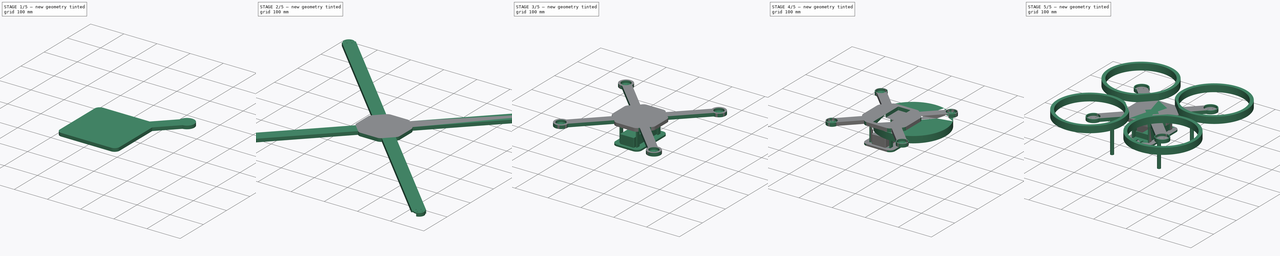
[diagram: build sequence overview — one tinted view per stage of 5, left to right]
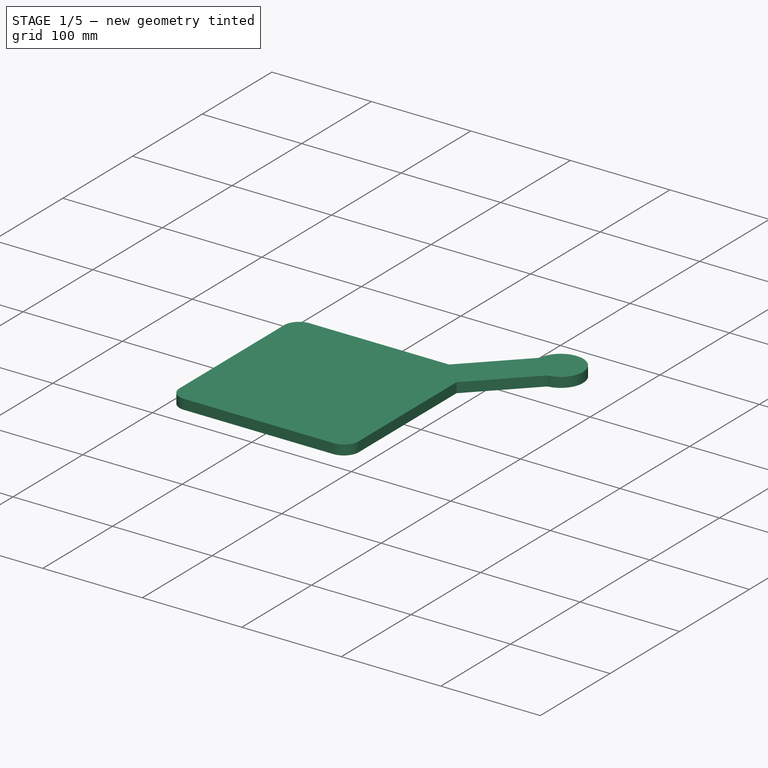
[diagram: stage 1 of 5 — iso view after this stage's code; geometry added in this stage tinted green]
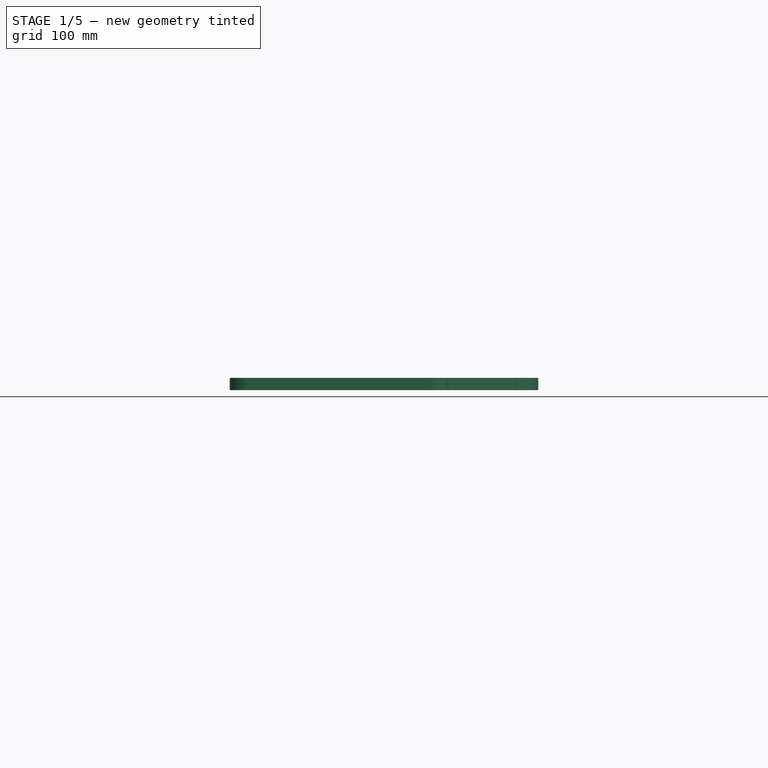
[diagram: stage 1 of 5 — front view after this stage's code; geometry added in this stage tinted green]
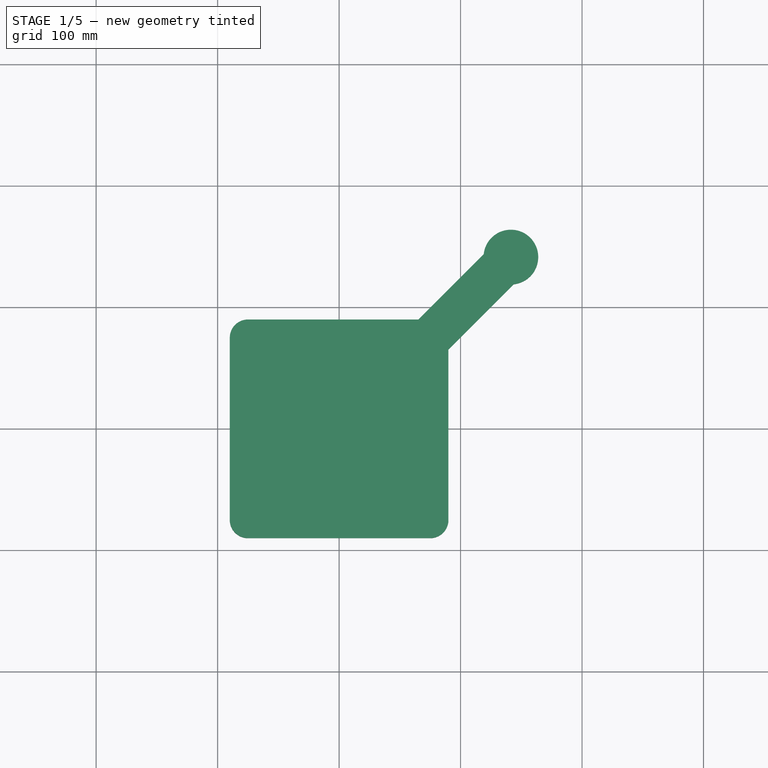
[diagram: stage 1 of 5 — top view after this stage's code; geometry added in this stage tinted green]
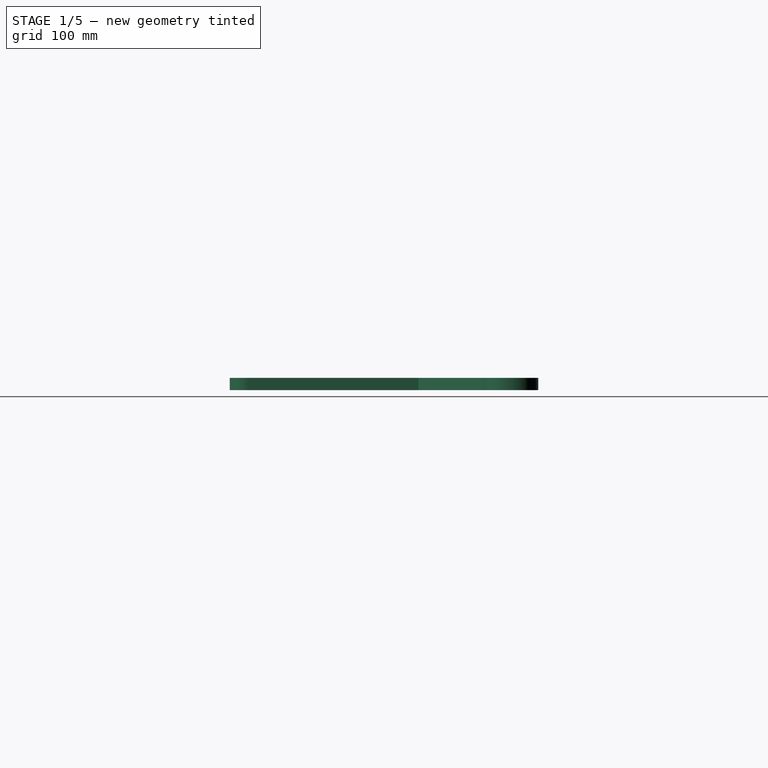
[diagram: stage 1 of 5 — right view after this stage's code; geometry added in this stage tinted green]
FCSTD DOCUMENT  (FreeCAD 0.19R)
Label: final_quadcopter
License: All rights reserved
LicenseURL: http://en.wikipedia.org/wiki/All_rights_reserved
objects: Sketcher::SketchObject×16, PartDesign::Pad×8, PartDesign::Pocket×6, Spreadsheet::Sheet×1, PartDesign::Hole×1, PartDesign::PolarPattern×1, PartDesign::Body×1
note: 48 computed .brp shape members not serialized (recipe doc carries the construction recipe); baked Part::Feature solids carry a one-line shape summary decoded from their .brp

FEATURE [Sketcher::SketchObject] Sketch  label="top_base"
  FullyConstrained = true
  expr: .Constraints.frame_width = Spreadsheet.B2
  expr: .Constraints.frame_length = Spreadsheet.A2
  sketch-geometry (10):
    g0: ArcOfCircle CenterX=-75 CenterY=75 CenterZ=0 NormalX=0 NormalY=0 NormalZ=1 AngleXU=0 Radius=15 StartAngle=1.5708 EndAngle=3.14159
    g1: LineSegment StartX=-75 StartY=90 StartZ=0 EndX=75 EndY=90 EndZ=0
    g2: ArcOfCircle CenterX=75 CenterY=75 CenterZ=0 NormalX=0 NormalY=0 NormalZ=1 AngleXU=0 Radius=15 StartAngle=2e-16 EndAngle=1.5708
    g3: LineSegment StartX=90 StartY=75 StartZ=0 EndX=90 EndY=-75 EndZ=0
    g4: ArcOfCircle CenterX=75 CenterY=-75 CenterZ=0 NormalX=0 NormalY=0 NormalZ=1 AngleXU=0 Radius=15 StartAngle=4.71239 EndAngle=6.28319
    g5: LineSegment StartX=75 StartY=-90 StartZ=0 EndX=-75 EndY=-90 EndZ=0
    g6: ArcOfCircle CenterX=-75 CenterY=-75 CenterZ=0 NormalX=0 NormalY=0 NormalZ=1 AngleXU=0 Radius=15 StartAngle=3.14159 EndAngle=4.71239
    g7: LineSegment StartX=-90 StartY=-75 StartZ=0 EndX=-90 EndY=75 EndZ=0
    g8: GeomPoint X=-90 Y=90 Z=0
    g9: GeomPoint X=90 Y=-90 Z=0
  constraints (22):
    c: Tangent(g0,g1) = 1.5708
    c: Tangent(g1,g2) = 1.5708
    c: Tangent(g2,g3) = 1.5708
    c: Tangent(g3,g4) = 1.5708
    c: Tangent(g4,g5) = 1.5708
    c: Tangent(g5,g6) = 1.5708
    c: Tangent(g6,g7) = 1.5708
    c: Tangent(g7,g0) = 1.5708
    c: Horizontal(g1)
    c: Horizontal(g5)
    c: Vertical(g3)
    c: Vertical(g7)
    c: Equal(g2,g4)
    c: PointOnObject(g8,g1)
    c: PointOnObject(g8,g7)
    c: PointOnObject(g9,g3)
    c: PointOnObject(g9,g5)
    c: Distance(g7) = 150  'frame_length'
    c: Distance(g1) = 150  'frame_width'
    c: Radius(g2) = 15
    c: Symmetric(g0,g6,g-1)
    c: Symmetric(g0,g2,g-2)
FEATURE [Sketcher::SketchObject] Sketch001  label="arm"
  FullyConstrained = true
  MapMode = 5
  Placement = pos=(0,0,5) rot=(0,0,1;0rad)
  expr: .Constraints.arm_width = Spreadsheet.D2
  expr: .Constraints.arm_length = Spreadsheet.C2
  sketch-geometry (4):
    g0: LineSegment StartX=12.3744 StartY=-12.3744 StartZ=0 EndX=153.796 EndY=129.047 EndZ=0
    g1: LineSegment StartX=153.796 StartY=129.047 StartZ=0 EndX=129.047 EndY=153.796 EndZ=0
    g2: LineSegment StartX=129.047 StartY=153.796 StartZ=0 EndX=-12.3744 EndY=12.3744 EndZ=0
    g3: LineSegment StartX=-12.3744 StartY=12.3744 StartZ=0 EndX=12.3744 EndY=-12.3744 EndZ=0
  constraints (11):
    c: Coincident(g0,g1)
    c: Coincident(g1,g2)
    c: Coincident(g2,g3)
    c: Coincident(g3,g0)
    c: Equal(g1,g3)
    c: Equal(g2,g0)
    c: Perpendicular(g1,g0)
    c: Distance(g0) = 200  'arm_length'
    c: Distance(g1) = 35  'arm_width'
    c: Angle(g-1,g0) = 0.785398
    c: Symmetric(g2,g0,g-1)
FEATURE [Sketcher::SketchObject] Sketch002  label="outer_motor_base"
  ExternalGeometry = -> [Sketch001]
  FullyConstrained = true
  MapMode = 5
  Placement = pos=(0,0,5) rot=(0,0,1;0rad)
  expr: .Constraints.motor_outer_diameter = Spreadsheet.E2
  sketch-geometry (1):
    g0: Circle CenterX=141.421 CenterY=141.421 CenterZ=0 NormalX=0 NormalY=0 NormalZ=1 AngleXU=0 Radius=22.5
  constraints (2):
    c: Diameter(g0) = 45  'motor_outer_diameter'
    c: Symmetric(g-3,g-4,g0)
FEATURE [Sketcher::SketchObject] Sketch004
  FullyConstrained = true
  MapMode = 5
  Placement = pos=(0,0,5) rot=(0,0,1;0rad)
FEATURE [PartDesign::Pad] Pad
  Direction = (0,0,1)
  Length = 10
  Length2 = 10
  Profile = -> Sketch
  Type = 0
FEATURE [PartDesign::Pad] Pad001
  BaseFeature = -> Pad
  Direction = (0,0,1)
  Length = 10
  Length2 = 10
  Midplane = true
  Profile = -> Sketch001
  Type = 0
FEATURE [PartDesign::Pad] Pad002
  BaseFeature = -> Pad001
  Direction = (0,0,1)
  Length = 10
  Length2 = 10
  Midplane = true
  Profile = -> Sketch002
  Type = 0
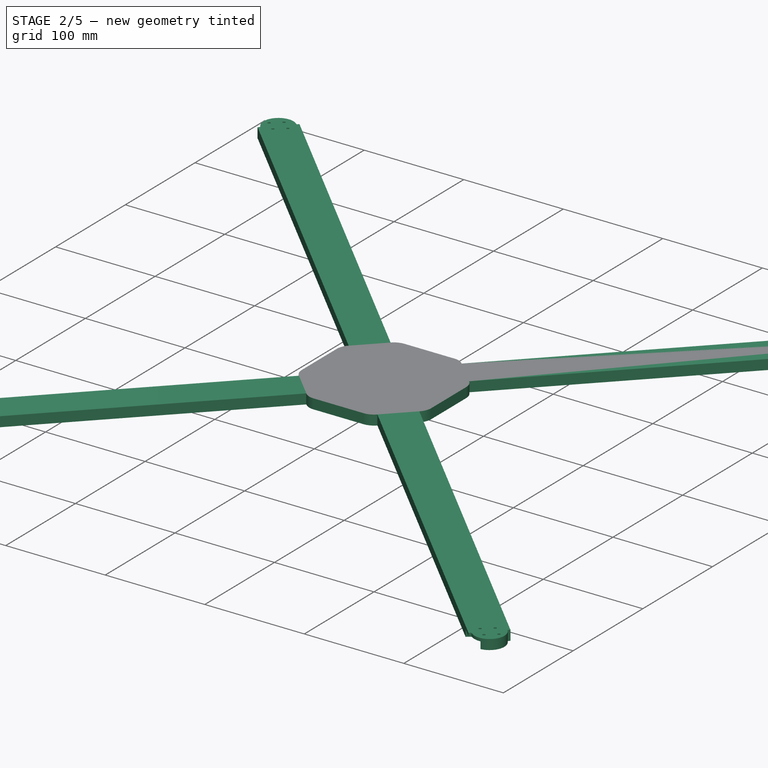
[diagram: stage 2 of 5 — iso view after this stage's code; geometry added in this stage tinted green]
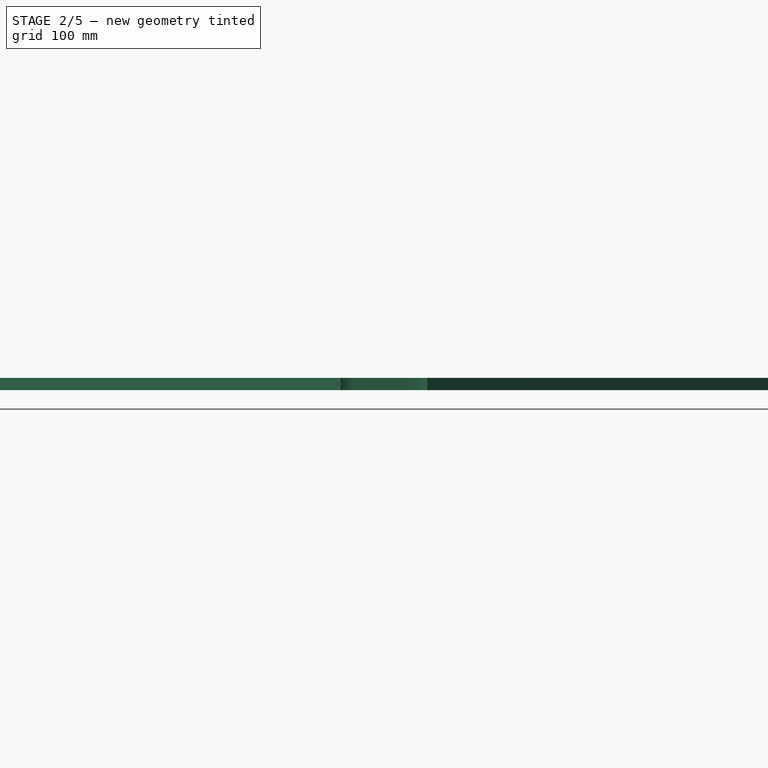
[diagram: stage 2 of 5 — front view after this stage's code; geometry added in this stage tinted green]
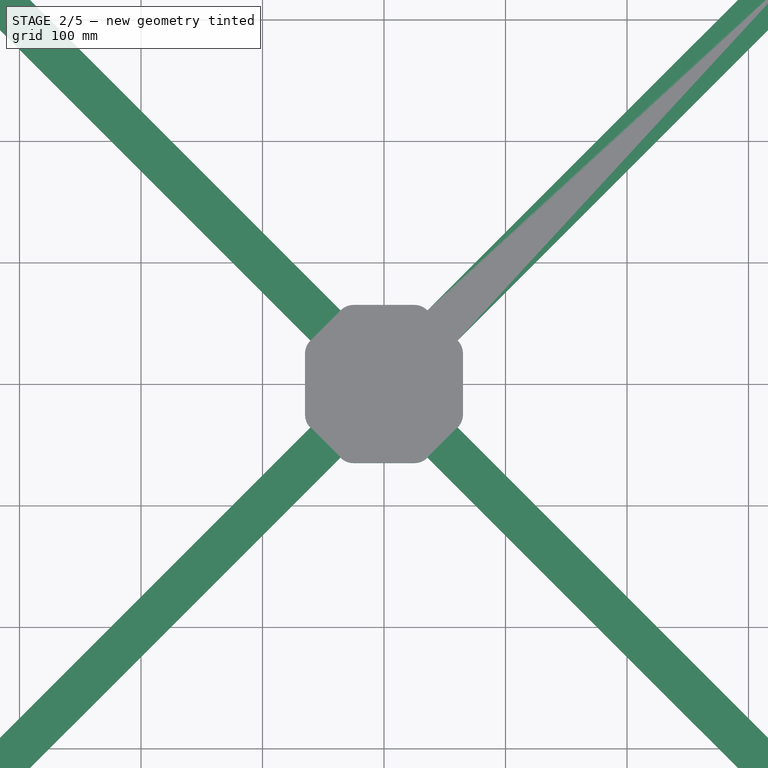
[diagram: stage 2 of 5 — top view after this stage's code; geometry added in this stage tinted green]
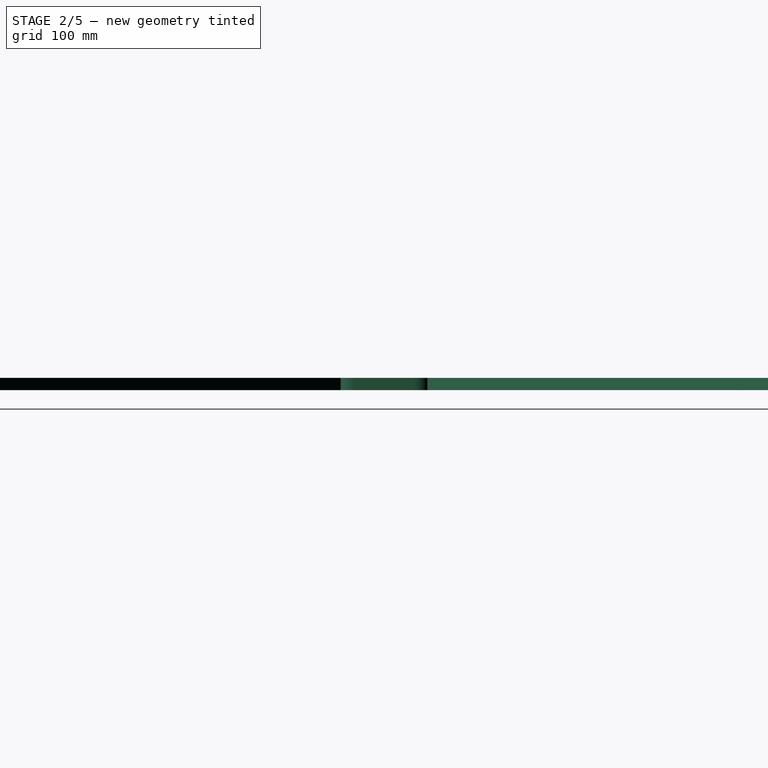
[diagram: stage 2 of 5 — right view after this stage's code; geometry added in this stage tinted green]
FEATURE [Spreadsheet::Sheet] Spreadsheet
  cells = A1=Frame Length; B1=Frame Width; C1=Arm Length; D1=Arm Width; E1=Motor Outer Diameter; F1=Motor Actual Diameter; G1=Motor Srew Diameter; H1=Screw Distance 1; I1=Screw Distance 2; J1=Drone Frame Hieght; K1=Base Thickness; L1=Battery Length; M1=Bettery Width; N1=Battery Height; O1=Battery Edge Radius; P1=Battery Thickness; Q1=Battery Clearance Height; R1=Guard Height; S1=Rotor Diameter; T1=Guard Radius; U1=Landing Base Diameter; V1=Landing Base Height; W1=Switch Terminal Thickness Radius; X1= Switch Terminal Distance; Y1=Switch Terminal Length; A2=150; B2=150; C2=200; D2=35; E2=45; F2=28; G2=2; H2=16; I2=19; J2=100; K2=5; L2=105; M2=35; N2=30; O2=2; P2=5; Q2=15; R2=20; S2=100; T2=100; U2=10; V2=100; W2=2; X2=15; Y2=10
FEATURE [Sketcher::SketchObject] Sketch007  label="inner_motor_base"
  ExternalGeometry = -> [Pad002]
  FullyConstrained = true
  MapMode = 5
  Placement = pos=(0,0,10) rot=(0,0,1;0rad)
  Support = -> [Pad002]
  expr: .Constraints.motor_diameter = Spreadsheet.F2
  sketch-geometry (1):
    g0: Circle CenterX=141.421 CenterY=141.421 CenterZ=0 NormalX=0 NormalY=0 NormalZ=1 AngleXU=0 Radius=14
  constraints (2):
    c: Coincident(g0,g-5)
    c: Diameter(g0) = 28  'motor_diameter'
FEATURE [PartDesign::Pocket] Pocket
  BaseFeature = -> Pad002
  Length = 7
  Length2 = 5
  Profile = -> Sketch007
  Type = 0
FEATURE [Sketcher::SketchObject] Sketch008  label="motor_screws"
  ExternalGeometry = -> [Pocket,Sketch001,Sketch007]
  FullyConstrained = false
  MapMode = 5
  Placement = pos=(0,0,3) rot=(0,0,1;0rad)
  Support = -> [Pocket]
  expr: .Constraints.screw_distance_2 = Spreadsheet.I2
  expr: .Constraints.screw_distance_1 = Spreadsheet.H2
  expr: .Constraints.screw_diameter = Spreadsheet.G2
  sketch-geometry (4):
    g0: Circle CenterX=345.553 CenterY=-353.553 CenterZ=0 NormalX=0 NormalY=0 NormalZ=1 AngleXU=0 Radius=1
    g1: Circle CenterX=353.553 CenterY=-344.053 CenterZ=0 NormalX=0 NormalY=0 NormalZ=1 AngleXU=0 Radius=1
    g2: Circle CenterX=361.553 CenterY=-353.553 CenterZ=0 NormalX=0 NormalY=0 NormalZ=1 AngleXU=0 Radius=1
    g3: Circle CenterX=353.553 CenterY=-363.053 CenterZ=0 NormalX=0 NormalY=0 NormalZ=1 AngleXU=0 Radius=1
  constraints (10):
    c: Equal(g2,g3)
    c: Equal(g3,g1)
    c: Equal(g1,g0)
    c: Diameter(g1) = 2  'screw_diameter'
    c: Symmetric(g3,g1,g-3)
    c: Symmetric(g2,g0,g-3)
    c: Distance(g1,g3) = 19  'screw_distance_2'
    c: Distance(g2,g0) = 16  'screw_distance_1'
    c: Horizontal(g0,g-3)
    c: Vertical(g1,g-3)
FEATURE [PartDesign::Hole] Hole
  BaseFeature = -> Pocket
  Depth = 25
  DepthType = 0
  Diameter = 2.65
  DrillForDepth = false
  DrillPoint = 1
  DrillPointAngle = 118
  HoleCutCountersinkAngle = 90
  HoleCutCustomValues = false
  HoleCutDepth = 0
  HoleCutDiameter = 6.1
  HoleCutType = 0
  ModelActualThread = false
  Profile = -> Sketch008
  Tapered = false
  TaperedAngle = 90
  ThreadAngle = 60
  ThreadClass = 0
  ThreadCutOffInner = 0.0378886
  ThreadCutOffOuter = 0.0757772
  ThreadDirection = 0
  ThreadFit = 0
  ThreadPitch = 0.35
  ThreadSize = 9
  ThreadType = 2
  Threaded = true
FEATURE [PartDesign::PolarPattern] PolarPattern
  Angle = 360
  Axis = -> Sketch [N_Axis]
  BaseFeature = -> Hole
  Occurrences = 3
  Originals = -> [Pad,Pad001,Pad002,Pocket,Hole]
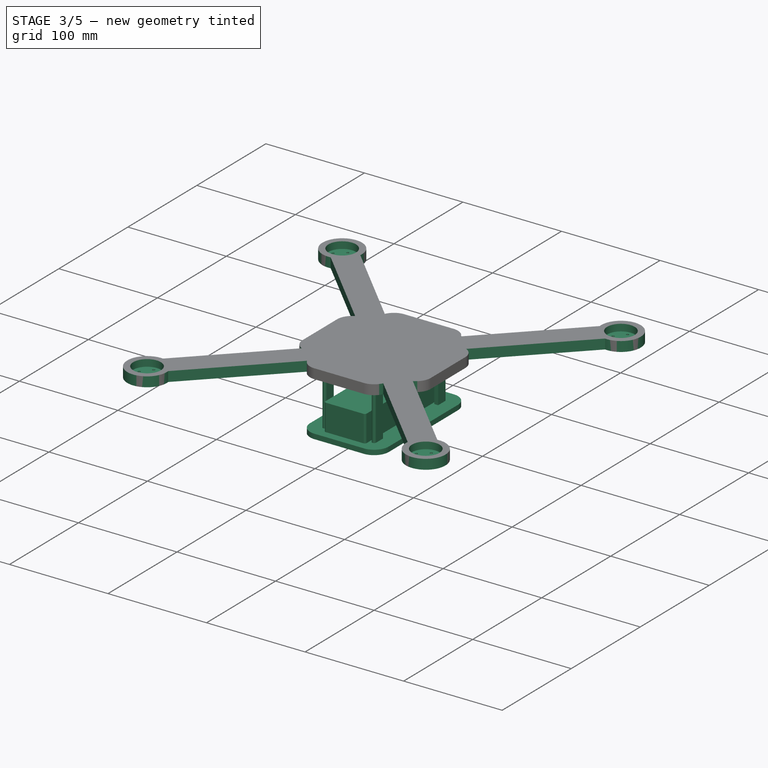
[diagram: stage 3 of 5 — iso view after this stage's code; geometry added in this stage tinted green]
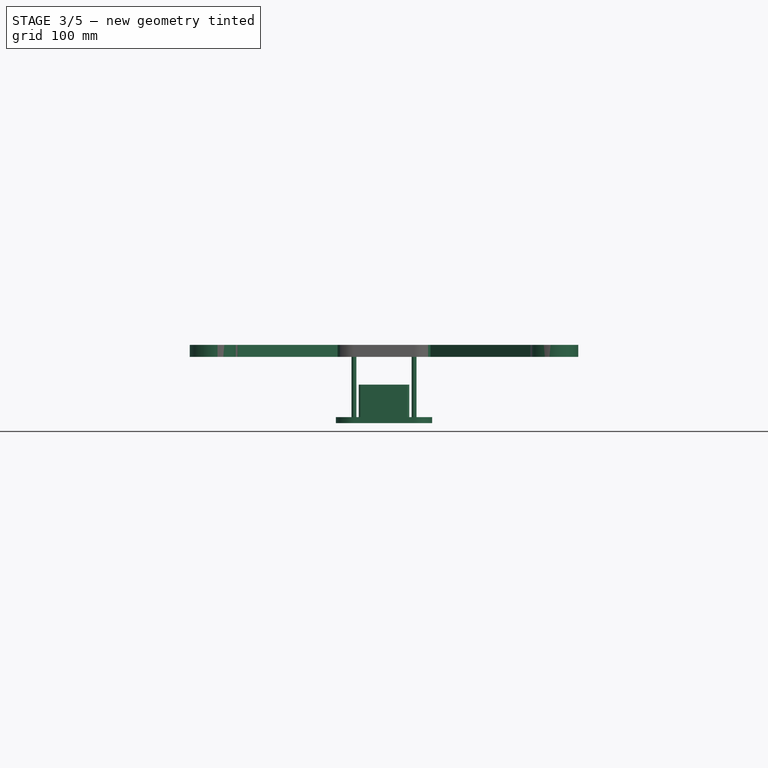
[diagram: stage 3 of 5 — front view after this stage's code; geometry added in this stage tinted green]
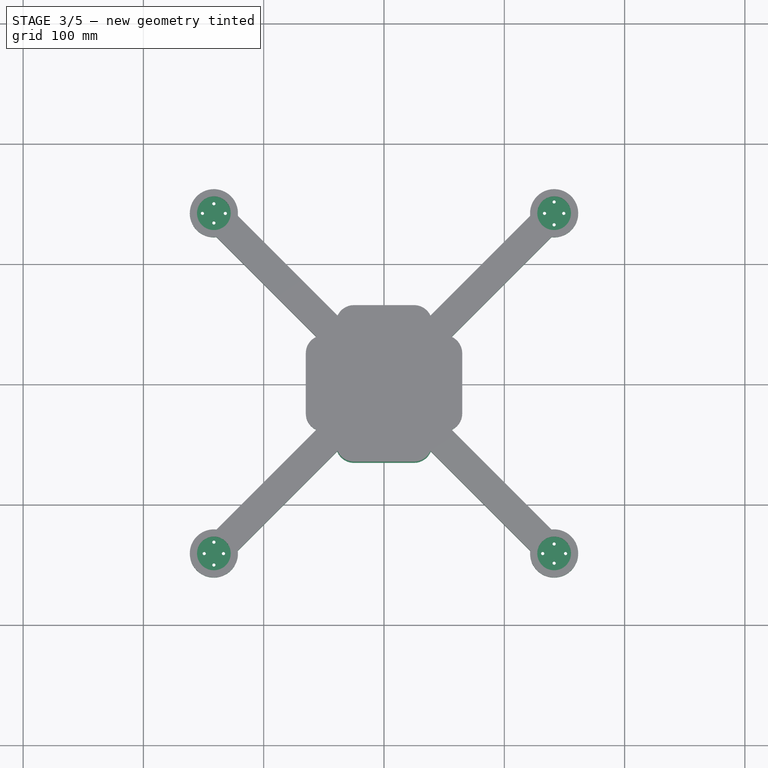
[diagram: stage 3 of 5 — top view after this stage's code; geometry added in this stage tinted green]
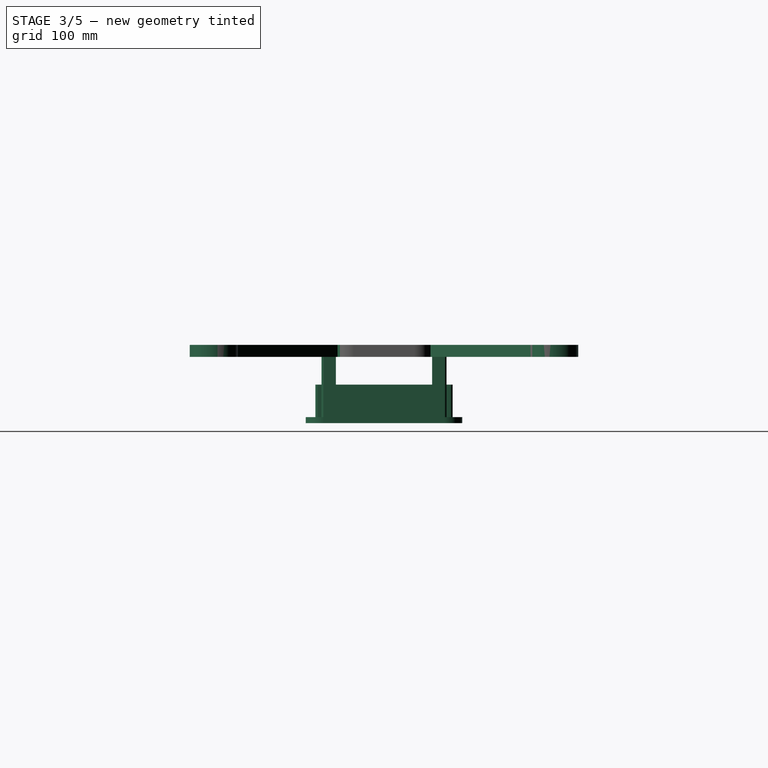
[diagram: stage 3 of 5 — right view after this stage's code; geometry added in this stage tinted green]
FEATURE [Sketcher::SketchObject] Sketch009  label="support_pads"
  ExternalGeometry = -> [PolarPattern]
  FullyConstrained = true
  MapMode = 5
  Placement = pos=(0,0,0) rot=(1,0,0;3.14159rad)
  Support = -> [PolarPattern]
  sketch-geometry (8):
    g0: ArcOfCircle CenterX=-25 CenterY=50 CenterZ=0 NormalX=0 NormalY=0 NormalZ=1 AngleXU=0 Radius=2 StartAngle=-9e-16 EndAngle=3.14159
    g1: ArcOfCircle CenterX=-25 CenterY=-50 CenterZ=0 NormalX=0 NormalY=0 NormalZ=1 AngleXU=0 Radius=2 StartAngle=3.14159 EndAngle=6.28319
    g2: LineSegment StartX=-27 StartY=50 StartZ=0 EndX=-27 EndY=-50 EndZ=0
    g3: LineSegment StartX=-23 StartY=-50 StartZ=0 EndX=-23 EndY=50 EndZ=0
    g4: ArcOfCircle CenterX=25 CenterY=50 CenterZ=0 NormalX=0 NormalY=0 NormalZ=1 AngleXU=0 Radius=2 StartAngle=-1.8e-15 EndAngle=3.14159
    g5: ArcOfCircle CenterX=25 CenterY=-50 CenterZ=0 NormalX=0 NormalY=0 NormalZ=1 AngleXU=0 Radius=2 StartAngle=3.14159 EndAngle=6.28319
    g6: LineSegment StartX=23 StartY=50 StartZ=0 EndX=23 EndY=-50 EndZ=0
    g7: LineSegment StartX=27 StartY=-50 StartZ=0 EndX=27 EndY=50 EndZ=0
  constraints (16):
    c: Tangent(g0,g2) = -1.5708
    c: Tangent(g2,g1) = -1.5708
    c: Tangent(g1,g3) = -1.5708
    c: Tangent(g3,g0) = -1.5708
    c: Equal(g0,g1)
    c: Coincident(g0,g-5)
    c: Coincident(g1,g-12)
    c: Radius(g0) = 2
    c: Tangent(g4,g6) = -1.5708
    c: Tangent(g6,g5) = -1.5708
    c: Tangent(g5,g7) = -1.5708
    c: Tangent(g7,g4) = -1.5708
    c: Equal(g4,g5)
    c: Coincident(g4,g-23)
    c: Coincident(g5,g-15)
    c: Equal(g4,g0)
FEATURE [PartDesign::Pad] Pad003
  BaseFeature = -> PolarPattern
  Direction = (0,0,-1)
  Length = 50
  Length2 = 10
  Profile = -> Sketch009
  Type = 0
  expr: Length = Spreadsheet.J2
FEATURE [Sketcher::SketchObject] Sketch010  label="support_pockets"
  ExternalGeometry = -> [Sketch009]
  FullyConstrained = true
  MapMode = 5
  Placement = pos=(0,0,-50) rot=(1,0,0;3.14159rad)
  Support = -> [Pad003]
  expr: .Constraints.support_tickness = Spreadsheet.A2 - Spreadsheet.A2 / 5
  sketch-geometry (8):
    g0: LineSegment StartX=-27 StartY=40 StartZ=0 EndX=-23 EndY=40 EndZ=0
    g1: LineSegment StartX=-23 StartY=40 StartZ=0 EndX=-23 EndY=-40 EndZ=0
    g2: LineSegment StartX=-23 StartY=-40 StartZ=0 EndX=-27 EndY=-40 EndZ=0
    g3: LineSegment StartX=-27 StartY=-40 StartZ=0 EndX=-27 EndY=40 EndZ=0
    g4: LineSegment StartX=23 StartY=40 StartZ=0 EndX=27 EndY=40 EndZ=0
    g5: LineSegment StartX=27 StartY=40 StartZ=0 EndX=27 EndY=-40 EndZ=0
    g6: LineSegment StartX=27 StartY=-40 StartZ=0 EndX=23 EndY=-40 EndZ=0
    g7: LineSegment StartX=23 StartY=-40 StartZ=0 EndX=23 EndY=40 EndZ=0
  constraints (22):
    c: Coincident(g0,g1)
    c: Coincident(g1,g2)
    c: Coincident(g2,g3)
    c: Coincident(g3,g0)
    c: Horizontal(g0)
    c: Horizontal(g2)
    c: Vertical(g1)
    c: PointOnObject(g0,g-4)
    c: PointOnObject(g1,g-5)
    c: Coincident(g4,g5)
    c: Coincident(g5,g6)
    c: Coincident(g6,g7)
    c: Coincident(g7,g4)
    c: Horizontal(g4)
    c: Horizontal(g6)
    c: Vertical(g5)
    c: PointOnObject(g4,g-8)
    c: PointOnObject(g5,g-9)
    c: Symmetric(g0,g2,g-1)
    c: Symmetric(g4,g6,g-1)
    c: Equal(g5,g1)
    c: Distance(g1) = 80  'support_tickness'
FEATURE [PartDesign::Pocket] Pocket001
  BaseFeature = -> Pad003
  Length = 50
  Length2 = 5
  Profile = -> Sketch010
  Type = 0
  expr: Length = Spreadsheet.J2
FEATURE [Sketcher::SketchObject] Sketch011  label="bottom_base"
  ExternalGeometry = -> [Sketch]
  FullyConstrained = true
  MapMode = 5
  Placement = pos=(0,0,-50) rot=(1,0,0;3.14159rad)
  Support = -> [Pocket001]
  sketch-geometry (10):
    g0: ArcOfCircle CenterX=-25 CenterY=50 CenterZ=0 NormalX=0 NormalY=0 NormalZ=1 AngleXU=0 Radius=15 StartAngle=1.5708 EndAngle=3.14159
    g1: LineSegment StartX=-25 StartY=65 StartZ=0 EndX=25 EndY=65 EndZ=0
    g2: ArcOfCircle CenterX=25 CenterY=50 CenterZ=0 NormalX=0 NormalY=0 NormalZ=1 AngleXU=0 Radius=15 StartAngle=4.5e-14 EndAngle=1.5708
    g3: LineSegment StartX=40 StartY=50 StartZ=0 EndX=40 EndY=-50 EndZ=0
    g4: ArcOfCircle CenterX=25 CenterY=-50 CenterZ=0 NormalX=0 NormalY=0 NormalZ=1 AngleXU=0 Radius=15 StartAngle=4.71239 EndAngle=6.28319
    g5: LineSegment StartX=25 StartY=-65 StartZ=0 EndX=-25 EndY=-65 EndZ=0
    g6: ArcOfCircle CenterX=-25 CenterY=-50 CenterZ=0 NormalX=0 NormalY=0 NormalZ=1 AngleXU=0 Radius=15 StartAngle=3.14159 EndAngle=4.71239
    g7: LineSegment StartX=-40 StartY=-50 StartZ=0 EndX=-40 EndY=50 EndZ=0
    g8: GeomPoint X=-40 Y=65 Z=0
    g9: GeomPoint X=40 Y=-65 Z=0
  constraints (21):
    c: Tangent(g0,g1) = 1.5708
    c: Tangent(g1,g2) = 1.5708
    c: Tangent(g2,g3) = 1.5708
    c: Tangent(g3,g4) = 1.5708
    c: Tangent(g4,g5) = 1.5708
    c: Tangent(g5,g6) = 1.5708
    c: Tangent(g6,g7) = 1.5708
    c: Tangent(g7,g0) = 1.5708
    c: Horizontal(g1)
    c: Horizontal(g5)
    c: Vertical(g3)
    c: Vertical(g7)
    c: Equal(g2,g4)
    c: Equal(g4,g6)
    c: PointOnObject(g8,g1)
    c: PointOnObject(g8,g7)
    c: PointOnObject(g9,g3)
    c: PointOnObject(g9,g5)
    c: Coincident(g2,g-6)
    c: Coincident(g6,g-9)
    c: Coincident(g0,g-4)
FEATURE [PartDesign::Pad] Pad004
  BaseFeature = -> Pocket001
  Direction = (0,0,-1)
  Length = 5
  Length2 = 10
  Profile = -> Sketch011
  Type = 0
  expr: Length = Spreadsheet.K2
FEATURE [Sketcher::SketchObject] Sketch012  label="battery_outer_holder"
  ExternalGeometry = -> [Sketch011]
  FullyConstrained = true
  MapMode = 5
  Placement = pos=(0,0,-50) rot=(0,0,1;0rad)
  Support = -> [Pad004]
  expr: .Constraints.battery_outer_width = Spreadsheet.M2 + Spreadsheet.P2
  expr: .Constraints.battery_outer_length = Spreadsheet.L2 + Spreadsheet.P2
  expr: .Constraints.battery_edge_radius = Spreadsheet.O2
  sketch-geometry (10):
    g0: ArcOfCircle CenterX=-19 CenterY=55 CenterZ=0 NormalX=0 NormalY=0 NormalZ=1 AngleXU=0 Radius=2 StartAngle=1.5708 EndAngle=3.14159
    g1: LineSegment StartX=-19 StartY=57 StartZ=0 EndX=19 EndY=57 EndZ=0
    g2: ArcOfCircle CenterX=19 CenterY=55 CenterZ=0 NormalX=0 NormalY=0 NormalZ=1 AngleXU=0 Radius=2 StartAngle=1e-15 EndAngle=1.5708
    g3: LineSegment StartX=21 StartY=55 StartZ=0 EndX=21 EndY=-55 EndZ=0
    g4: ArcOfCircle CenterX=19 CenterY=-55 CenterZ=0 NormalX=0 NormalY=0 NormalZ=1 AngleXU=0 Radius=2 StartAngle=4.71239 EndAngle=6.28319
    g5: LineSegment StartX=19 StartY=-57 StartZ=0 EndX=-19 EndY=-57 EndZ=0
    g6: ArcOfCircle CenterX=-19 CenterY=-55 CenterZ=0 NormalX=0 NormalY=0 NormalZ=1 AngleXU=0 Radius=2 StartAngle=3.14159 EndAngle=4.71239
    g7: LineSegment StartX=-21 StartY=-55 StartZ=0 EndX=-21 EndY=55 EndZ=0
    g8: GeomPoint X=-21 Y=57 Z=0
    g9: GeomPoint X=21 Y=-57 Z=0
  constraints (23):
    c: Tangent(g0,g1) = 1.5708
    c: Tangent(g1,g2) = 1.5708
    c: Tangent(g2,g3) = 1.5708
    c: Tangent(g3,g4) = 1.5708
    c: Tangent(g4,g5) = 1.5708
    c: Tangent(g5,g6) = 1.5708
    c: Tangent(g6,g7) = 1.5708
    c: Tangent(g7,g0) = 1.5708
    c: Horizontal(g1)
    c: Horizontal(g5)
    c: Vertical(g3)
    c: Vertical(g7)
    c: Equal(g4,g6)
    c: PointOnObject(g8,g1)
    c: PointOnObject(g8,g7)
    c: PointOnObject(g9,g3)
    c: PointOnObject(g9,g5)
    c: Symmetric(g2,g0,g-2)
    c: Symmetric(g1,g4,g-1)
    c: Distance(g3) = 110  'battery_outer_length'
    c: Distance(g1) = 38  'battery_outer_width'
    c: Distance(g-5) = 100
    c: Radius(g2) = 2  'battery_edge_radius'
FEATURE [PartDesign::Pad] Pad005
  BaseFeature = -> Pad004
  Direction = (0,0,1)
  Length = 27
  Length2 = 10
  Profile = -> Sketch012
  Type = 0
  expr: Length = Spreadsheet.N2
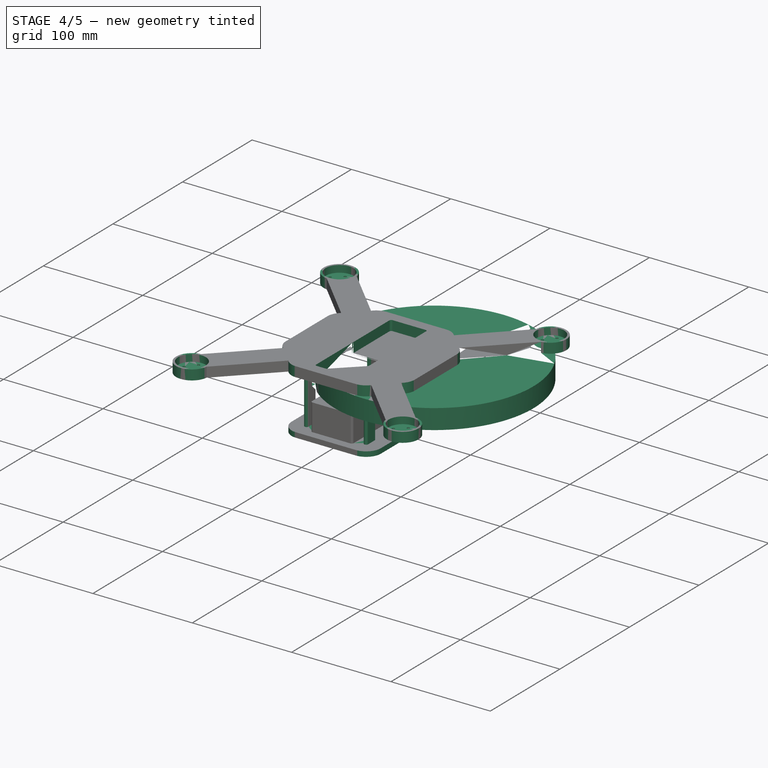
[diagram: stage 4 of 5 — iso view after this stage's code; geometry added in this stage tinted green]
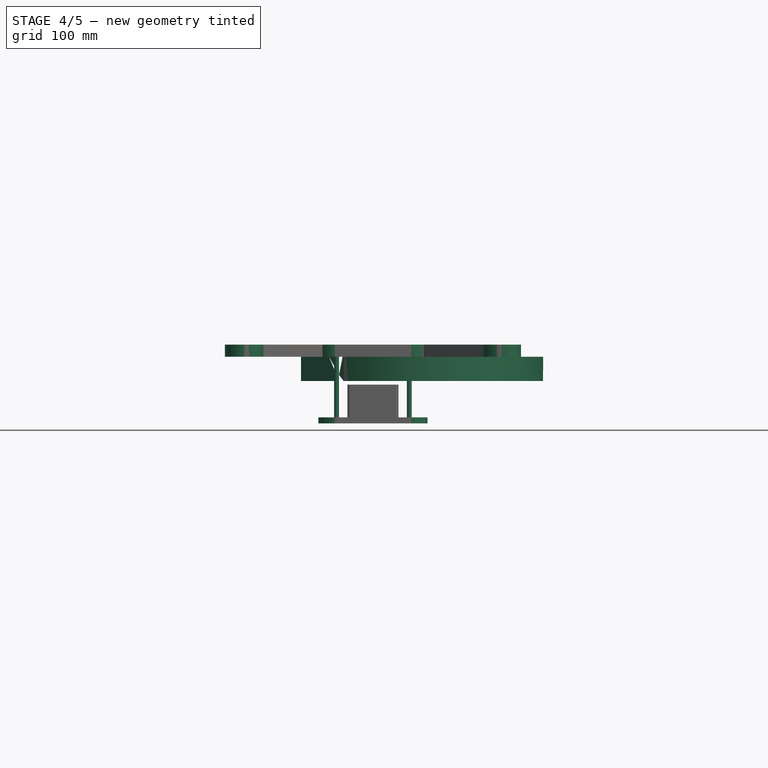
[diagram: stage 4 of 5 — front view after this stage's code; geometry added in this stage tinted green]
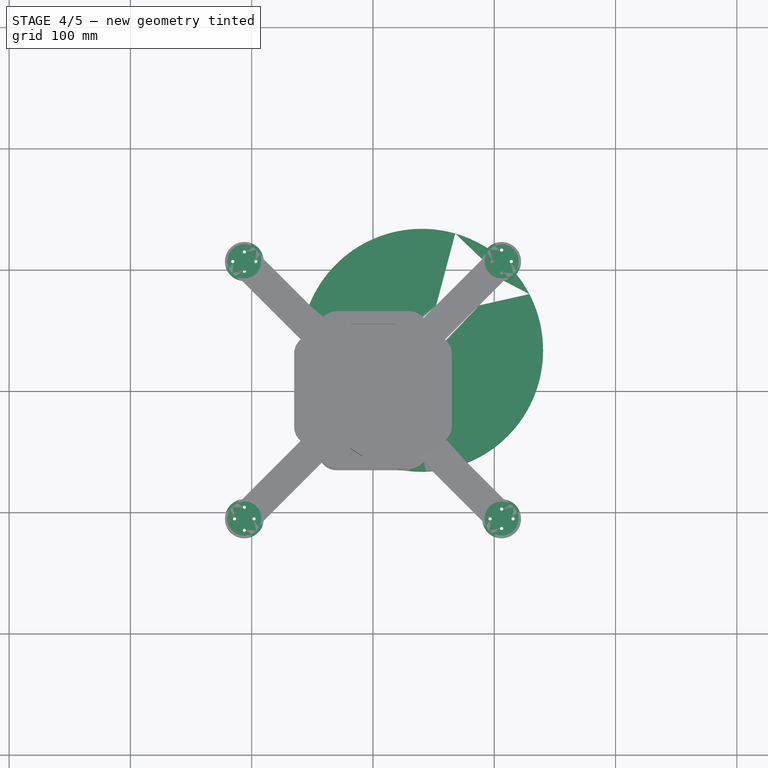
[diagram: stage 4 of 5 — top view after this stage's code; geometry added in this stage tinted green]
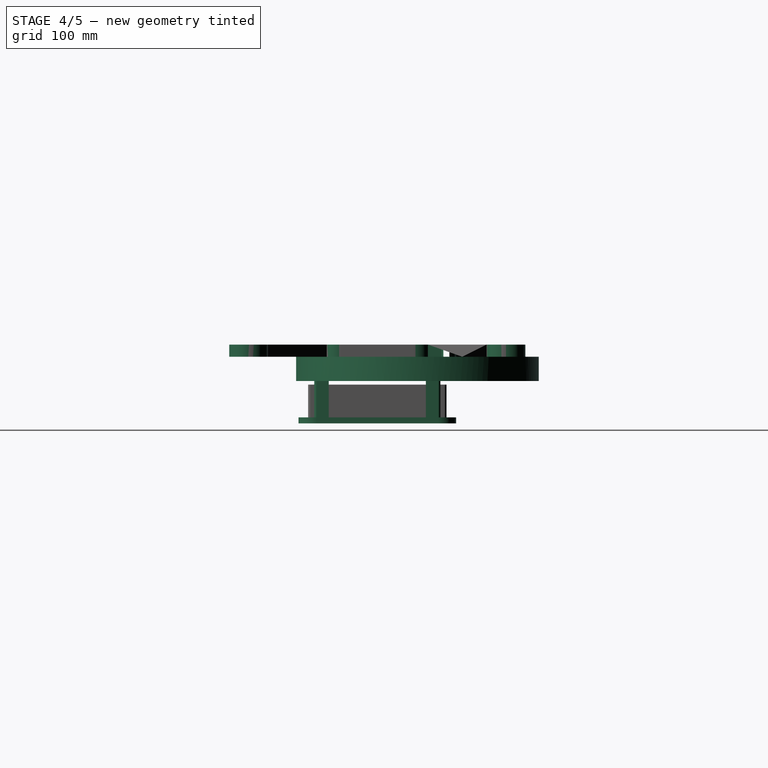
[diagram: stage 4 of 5 — right view after this stage's code; geometry added in this stage tinted green]
FEATURE [Sketcher::SketchObject] Sketch013  label="battery_pocket"
  ExternalGeometry = -> [Sketch012]
  FullyConstrained = true
  MapMode = 5
  Placement = pos=(0,0,0) rot=(1,0,0;3.14159rad)
  Support = -> [Pad005]
  expr: .Constraints.battery_length = Spreadsheet.L2
  expr: .Constraints.battery_width = Spreadsheet.M2
  expr: .Constraints.battery_edge_radius = Spreadsheet.O2
  sketch-geometry (10):
    g0: ArcOfCircle CenterX=-16.5 CenterY=52.5 CenterZ=0 NormalX=0 NormalY=0 NormalZ=1 AngleXU=0 Radius=2 StartAngle=1.5708 EndAngle=3.14159
    g1: LineSegment StartX=-16.5 StartY=54.5 StartZ=0 EndX=16.5 EndY=54.5 EndZ=0
    g2: ArcOfCircle CenterX=16.5 CenterY=52.5 CenterZ=0 NormalX=0 NormalY=0 NormalZ=1 AngleXU=0 Radius=2 StartAngle=1.6e-15 EndAngle=1.5708
    g3: LineSegment StartX=18.5 StartY=52.5 StartZ=0 EndX=18.5 EndY=-52.5 EndZ=0
    g4: ArcOfCircle CenterX=16.5 CenterY=-52.5 CenterZ=0 NormalX=0 NormalY=0 NormalZ=1 AngleXU=0 Radius=2 StartAngle=4.71239 EndAngle=6.28319
    g5: LineSegment StartX=16.5 StartY=-54.5 StartZ=0 EndX=-16.5 EndY=-54.5 EndZ=0
    g6: ArcOfCircle CenterX=-16.5 CenterY=-52.5 CenterZ=0 NormalX=0 NormalY=0 NormalZ=1 AngleXU=0 Radius=2 StartAngle=3.14159 EndAngle=4.71239
    g7: LineSegment StartX=-18.5 StartY=-52.5 StartZ=0 EndX=-18.5 EndY=52.5 EndZ=0
    g8: GeomPoint X=-18.5 Y=54.5 Z=0
    g9: GeomPoint X=18.5 Y=-54.5 Z=0
  constraints (22):
    c: Tangent(g0,g1) = 1.5708
    c: Tangent(g1,g2) = 1.5708
    c: Tangent(g2,g3) = 1.5708
    c: Tangent(g3,g4) = 1.5708
    c: Tangent(g4,g5) = 1.5708
    c: Tangent(g5,g6) = 1.5708
    c: Tangent(g6,g7) = 1.5708
    c: Tangent(g7,g0) = 1.5708
    c: Horizontal(g1)
    c: Horizontal(g5)
    c: Vertical(g3)
    c: Vertical(g7)
    c: Equal(g4,g6)
    c: PointOnObject(g8,g1)
    c: PointOnObject(g8,g7)
    c: PointOnObject(g9,g3)
    c: PointOnObject(g9,g5)
    c: Distance(g1) = 33  'battery_width'
    c: Distance(g7) = 105  'battery_length'
    c: Radius(g0) = 2  'battery_edge_radius'
    c: Symmetric(g0,g2,g-2)
    c: Symmetric(g1,g4,g-1)
FEATURE [PartDesign::Pocket] Pocket002
  BaseFeature = -> Pad005
  Length = 27
  Length2 = 5
  Profile = -> Sketch013
  Type = 0
  expr: Length = Spreadsheet.N2
FEATURE [Sketcher::SketchObject] Sketch014  label="battery_clearance_pocket"
  ExternalGeometry = -> [Pocket002,Sketch012]
  FullyConstrained = false
  MapMode = 5
  Placement = pos=(0,-57,0) rot=(1,0,0;1.5708rad)
  Support = -> [Pocket002]
  expr: Constraints[10] = Spreadsheet.Q2
  sketch-geometry (4):
    g0: LineSegment StartX=-21 StartY=-23 StartZ=0 EndX=-21 EndY=-23 EndZ=0
    g1: LineSegment StartX=-21 StartY=-23 StartZ=0 EndX=-21 EndY=-38 EndZ=0
    g2: LineSegment StartX=-21 StartY=-38 StartZ=0 EndX=-21 EndY=-38 EndZ=0
    g3: LineSegment StartX=-21 StartY=-38 StartZ=0 EndX=-21 EndY=-23 EndZ=0
  constraints (11):
    c: Coincident(g0,g1)
    c: Coincident(g1,g2)
    c: Coincident(g2,g3)
    c: Coincident(g3,g0)
    c: Horizontal(g0)
    c: Horizontal(g2)
    c: Vertical(g1)
    c: Vertical(g3)
    c: Coincident(g0,g-4)
    c: PointOnObject(g1,g-5)
    c: Distance(g3) = 15
FEATURE [PartDesign::Pocket] Pocket003
  BaseFeature = -> Pocket002
  Length = 5
  Length2 = 5
  Profile = -> Sketch014
  Type = 0
FEATURE [Sketcher::SketchObject] Sketch015  label="rotor_outer_protectors"
  ExternalGeometry = -> [Pocket003]
  FullyConstrained = true
  MapMode = 5
  Placement = pos=(0,0,0) rot=(1,0,0;3.14159rad)
  Support = -> [Pocket003]
  expr: .Constraints.guard_radius = Spreadsheet.T2
  sketch-geometry (8):
    g0: ArcOfCircle CenterX=-52.4591 CenterY=72.3991 CenterZ=0 NormalX=0 NormalY=0 NormalZ=1 AngleXU=0 Radius=100 StartAngle=6.05728 EndAngle=11.0702
    g1: ArcOfCircle CenterX=-9.64139 CenterY=114.063 CenterZ=0 NormalX=0 NormalY=0 NormalZ=1 AngleXU=0 Radius=100 StartAngle=5.4742 EndAngle=6.22094
    g2: ArcOfCircle CenterX=19.4523 CenterY=-133.386 CenterZ=0 NormalX=0 NormalY=0 NormalZ=1 AngleXU=0 Radius=100 StartAngle=1.16005 EndAngle=2.05754
    g3: ArcOfCircle CenterX=72.3991 CenterY=-52.4591 CenterZ=0 NormalX=0 NormalY=0 NormalZ=1 AngleXU=0 Radius=100 StartAngle=3.06693 EndAngle=8.07989
    g4: LineSegment StartX=90.165 StartY=107.843 StartZ=0 EndX=59.3817 EndY=41.704 EndZ=0
    g5: LineSegment StartX=-45 StartY=-27.3223 StartZ=0 EndX=45 EndY=50 EndZ=0
    g6: LineSegment StartX=-27.3223 StartY=-45 StartZ=0 EndX=50 EndY=45 EndZ=0
    g7: LineSegment StartX=59.3817 StartY=-41.704 StartZ=0 EndX=-27.3223 EndY=-45 EndZ=0
  constraints (20):
    c: Coincident(g0,g-7)
    c: Coincident(g0,g-28)
    c: Coincident(g1,g-4)
    c: Coincident(g1,g-13)
    c: Coincident(g2,g-14)
    c: Coincident(g2,g-20)
    c: Coincident(g3,g-21)
    c: Coincident(g3,g-27)
    c: Equal(g0,g3)
    c: Equal(g3,g2)
    c: Equal(g2,g1)
    c: Coincident(g4,g1)
    c: Coincident(g4,g1)
    c: Coincident(g5,g0)
    c: Coincident(g5,g0)
    c: Coincident(g6,g3)
    c: Coincident(g6,g3)
    c: Coincident(g7,g2)
    c: Coincident(g7,g2)
    c: Radius(g3) = 100  'guard_radius'
FEATURE [PartDesign::Pad] Pad006
  BaseFeature = -> Pocket003
  Direction = (0,0,-1)
  Length = 20
  Length2 = 10
  Profile = -> Sketch015
  Type = 0
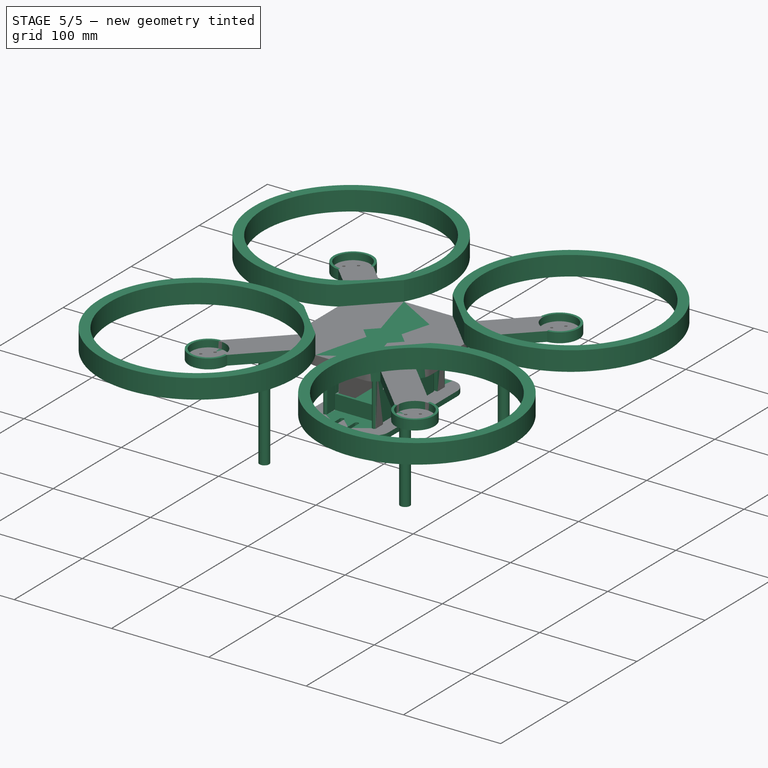
[diagram: stage 5 of 5 — iso view after this stage's code; geometry added in this stage tinted green]
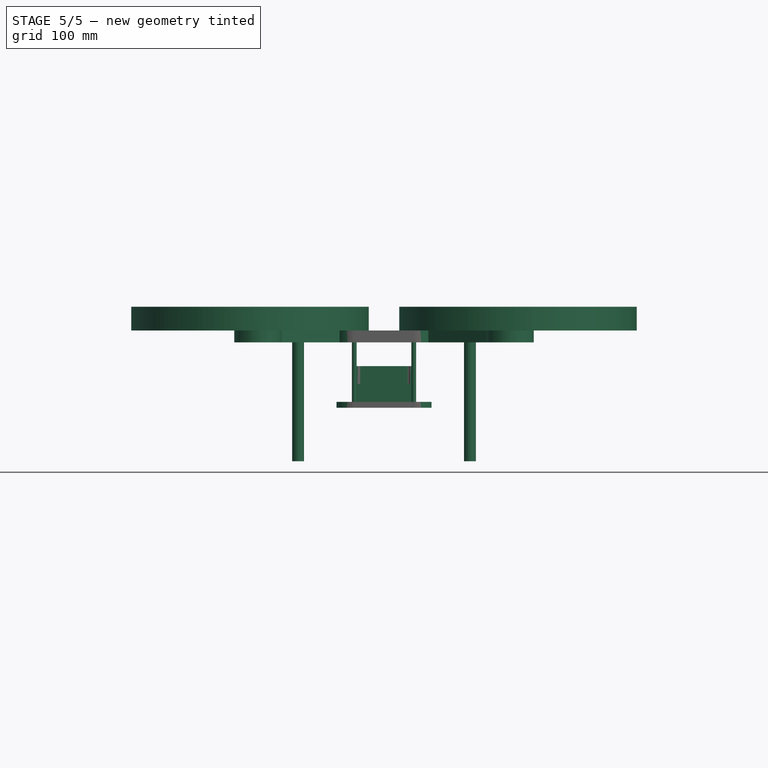
[diagram: stage 5 of 5 — front view after this stage's code; geometry added in this stage tinted green]
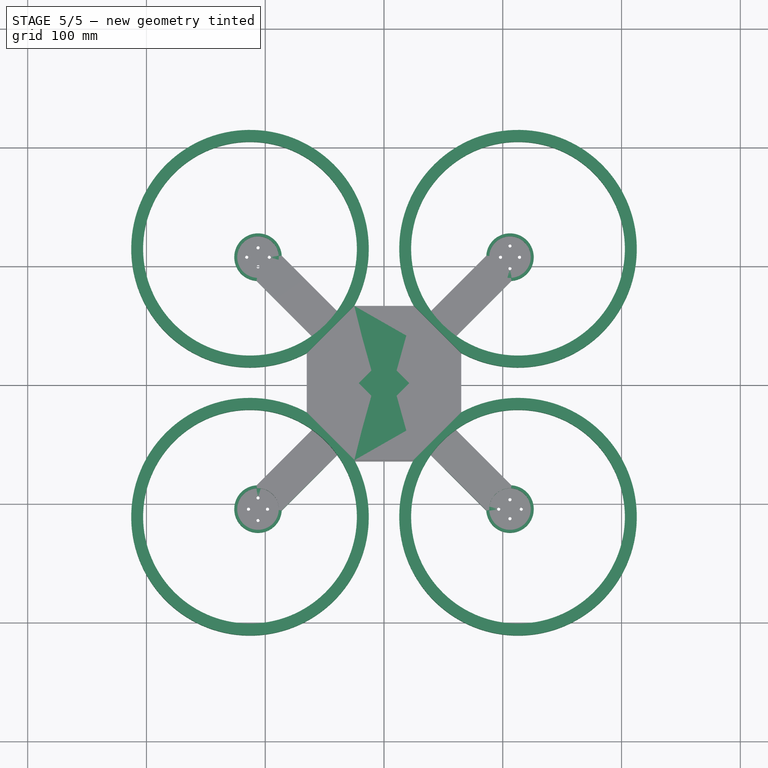
[diagram: stage 5 of 5 — top view after this stage's code; geometry added in this stage tinted green]
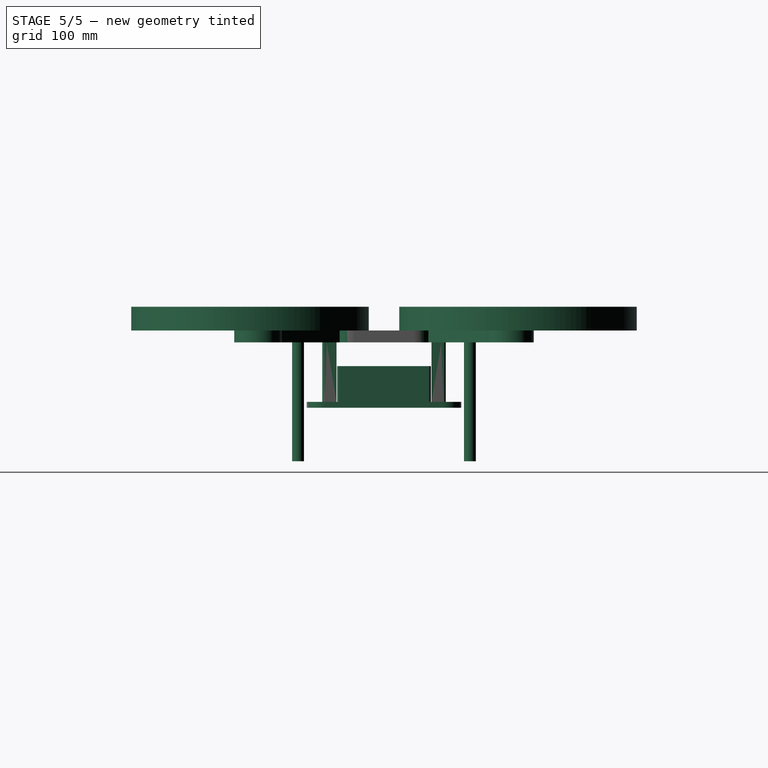
[diagram: stage 5 of 5 — right view after this stage's code; geometry added in this stage tinted green]
FEATURE [Sketcher::SketchObject] Sketch016  label="rotor_inner_protectors"
  ExternalGeometry = -> [Pad006]
  FullyConstrained = true
  MapMode = 5
  Placement = pos=(0,0,30) rot=(0,0,1;0rad)
  Support = -> [Pad006]
  expr: .Constraints.rotor_diameter = Spreadsheet.S2
  sketch-geometry (4):
    g0: Circle CenterX=-112.823 CenterY=112.823 CenterZ=0 NormalX=0 NormalY=0 NormalZ=1 AngleXU=0 Radius=125
    g1: Circle CenterX=112.823 CenterY=112.823 CenterZ=0 NormalX=0 NormalY=0 NormalZ=1 AngleXU=0 Radius=125
    g2: Circle CenterX=112.823 CenterY=-112.823 CenterZ=0 NormalX=0 NormalY=0 NormalZ=1 AngleXU=0 Radius=125
    g3: Circle CenterX=-112.823 CenterY=-112.823 CenterZ=0 NormalX=0 NormalY=0 NormalZ=1 AngleXU=0 Radius=125
  constraints (8):
    c: Coincident(g0,g-3)
    c: Coincident(g1,g-9)
    c: Coincident(g2,g-7)
    c: Coincident(g3,g-6)
    c: Equal(g0,g1)
    c: Equal(g1,g2)
    c: Equal(g2,g3)
    c: Diameter(g0) = 250  'rotor_diameter'
FEATURE [PartDesign::Pocket] Pocket004
  BaseFeature = -> Pad006
  Length = 0
  Length2 = 5
  Profile = -> Sketch016
  Type = 2
FEATURE [Sketcher::SketchObject] Sketch017  label="landing_gear_pads"
  ExternalGeometry = -> [Pocket004]
  FullyConstrained = true
  MapMode = 5
  Placement = pos=(0,0,0) rot=(1,0,0;3.14159rad)
  Support = -> [Pocket004]
  expr: .Constraints.landing_base_diameter = Spreadsheet.U2
  sketch-geometry (4):
    g0: Circle CenterX=-72.3241 CenterY=72.3241 CenterZ=0 NormalX=0 NormalY=0 NormalZ=1 AngleXU=0 Radius=5
    g1: Circle CenterX=72.3241 CenterY=72.3241 CenterZ=0 NormalX=0 NormalY=0 NormalZ=1 AngleXU=0 Radius=5
    g2: Circle CenterX=72.3241 CenterY=-72.3241 CenterZ=0 NormalX=0 NormalY=0 NormalZ=1 AngleXU=0 Radius=5
    g3: Circle CenterX=-72.3241 CenterY=-72.3241 CenterZ=0 NormalX=0 NormalY=0 NormalZ=1 AngleXU=0 Radius=5
  constraints (8):
    c: Equal(g1,g0)
    c: Equal(g0,g3)
    c: Equal(g3,g2)
    c: Symmetric(g-7,g-8,g0)
    c: Symmetric(g-23,g-26,g1)
    c: Symmetric(g-12,g-10,g3)
    c: Symmetric(g-20,g-17,g2)
    c: Diameter(g0) = 10  'landing_base_diameter'
FEATURE [PartDesign::Pad] Pad007
  BaseFeature = -> Pocket004
  Direction = (0,0,-1)
  Length = 100
  Length2 = 10
  Profile = -> Sketch017
  Type = 0
  expr: Length = Spreadsheet.V2
FEATURE [Sketcher::SketchObject] Sketch018  label="switch_holes"
  ExternalGeometry = -> [Pad007]
  FullyConstrained = true
  MapMode = 5
  Placement = pos=(0,0,-50) rot=(0,0,1;0rad)
  Support = -> [Pad007]
  expr: .Constraints.switch_terminal_thickness_readius = Spreadsheet.W2
  expr: .Constraints.switch_terminal_length = Spreadsheet.Y2
  expr: .Constraints.switch_terminal_distance = Spreadsheet.X2
  sketch-geometry (8):
    g0: ArcOfCircle CenterX=-7.5 CenterY=-61 CenterZ=0 NormalX=0 NormalY=0 NormalZ=1 AngleXU=0 Radius=2 StartAngle=3.14159 EndAngle=6.28319
    g1: ArcOfCircle CenterX=-7.5 CenterY=-51 CenterZ=0 NormalX=0 NormalY=0 NormalZ=1 AngleXU=0 Radius=2 StartAngle=1.8e-15 EndAngle=3.14159
    g2: LineSegment StartX=-5.5 StartY=-61 StartZ=0 EndX=-5.5 EndY=-51 EndZ=0
    g3: LineSegment StartX=-9.5 StartY=-51 StartZ=0 EndX=-9.5 EndY=-61 EndZ=0
    g4: ArcOfCircle CenterX=7.5 CenterY=-61 CenterZ=0 NormalX=0 NormalY=0 NormalZ=1 AngleXU=0 Radius=2 StartAngle=3.14159 EndAngle=6.28319
    g5: ArcOfCircle CenterX=7.5 CenterY=-51 CenterZ=0 NormalX=0 NormalY=0 NormalZ=1 AngleXU=0 Radius=2 StartAngle=-1.8e-15 EndAngle=3.14159
    g6: LineSegment StartX=9.5 StartY=-61 StartZ=0 EndX=9.5 EndY=-51 EndZ=0
    g7: LineSegment StartX=5.5 StartY=-51 StartZ=0 EndX=5.5 EndY=-61 EndZ=0
  constraints (19):
    c: Tangent(g0,g2) = -1.5708
    c: Tangent(g2,g1) = -1.5708
    c: Tangent(g1,g3) = -1.5708
    c: Tangent(g3,g0) = -1.5708
    c: Equal(g0,g1)
    c: Vertical(g2)
    c: Tangent(g4,g6) = -1.5708
    c: Tangent(g6,g5) = -1.5708
    c: Tangent(g5,g7) = -1.5708
    c: Tangent(g7,g4) = -1.5708
    c: Equal(g4,g5)
    c: Vertical(g6)
    c: Equal(g3,g7)
    c: Equal(g1,g4)
    c: Symmetric(g0,g4,g-2)
    c: Radius(g1) = 2  'switch_terminal_thickness_readius'
    c: Distance(g2) = 10  'switch_terminal_length'
    c: DistanceX(g0,g4) = 15  'switch_terminal_distance'
    c: Distance(g0,g-4) = 4
FEATURE [PartDesign::Pocket] Pocket005
  BaseFeature = -> Pad007
  Length = 0
  Length2 = 5
  Profile = -> Sketch018
  Type = 2
FEATURE [PartDesign::Body] Body
  Group = -> [Sketch,Sketch001,Sketch002,Sketch004,Pad,Pad001,Pad002,Sketch007,Pocket,Sketch008,Hole,PolarPattern,Sketch009,Pad003,Sketch010,Pocket001,Sketch011,Pad004,Sketch012,Pad005,Sketch013,Pocket002,Sketch014,Pocket003,Sketch015,Pad006,Sketch016,Pocket004,Sketch017,Pad007,Sketch018,Pocket005]
  Origin = -> Origin
  Tip = -> Pocket005
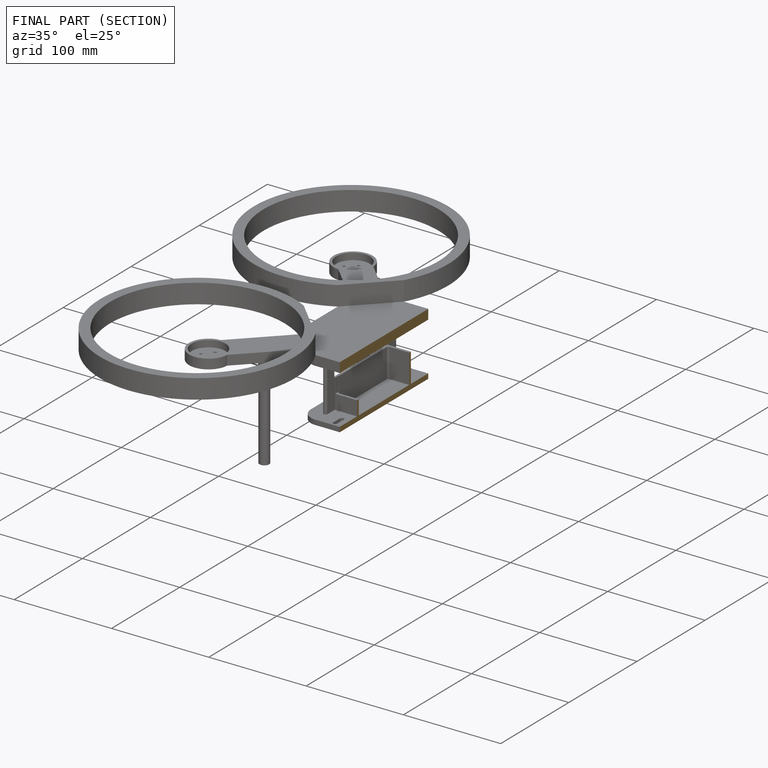
[diagram: finished part — half-section view (interior)]
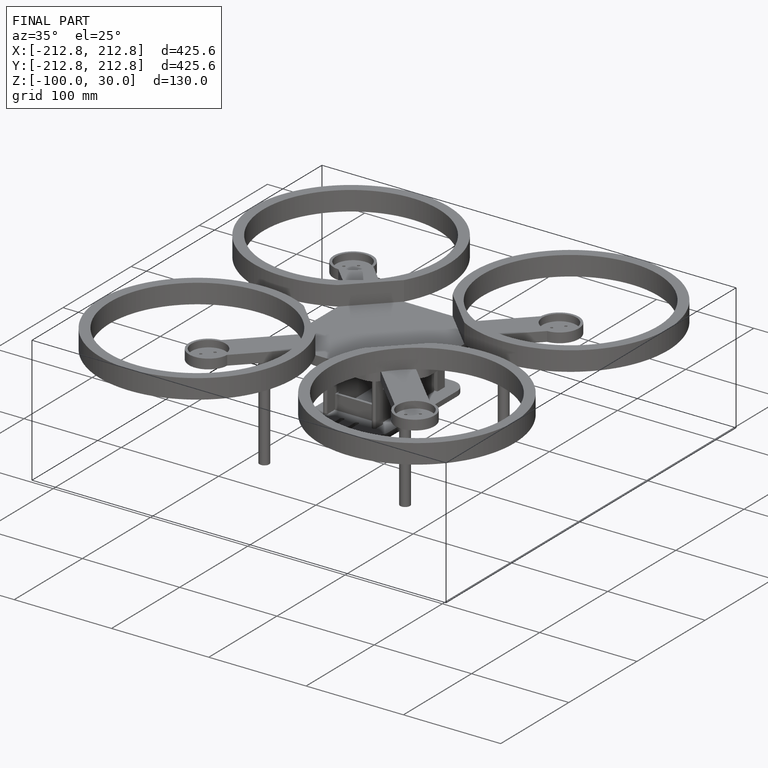
[diagram: finished part — iso view with bounding-box wireframe]
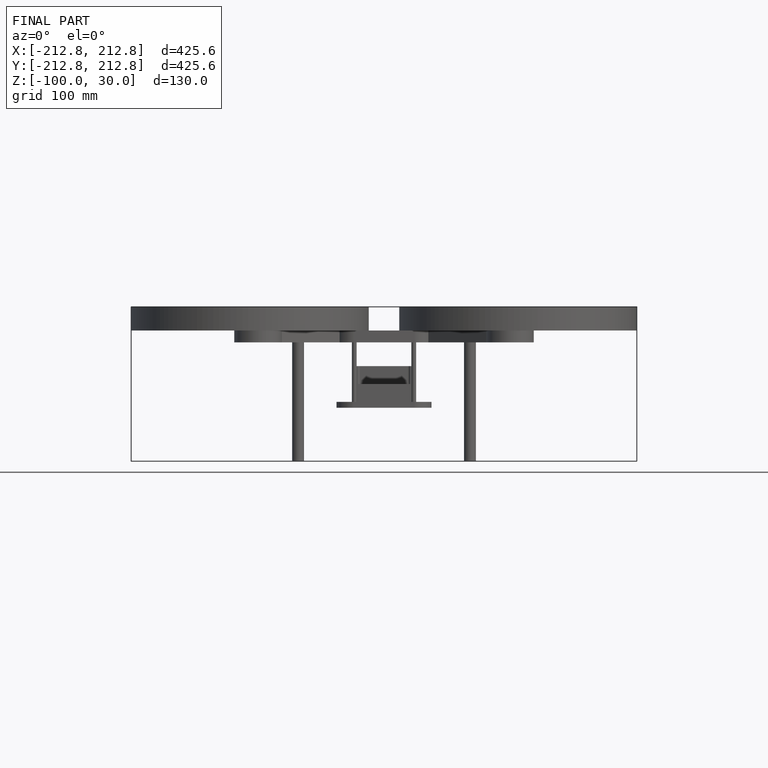
[diagram: finished part — front view with bounding-box wireframe]
